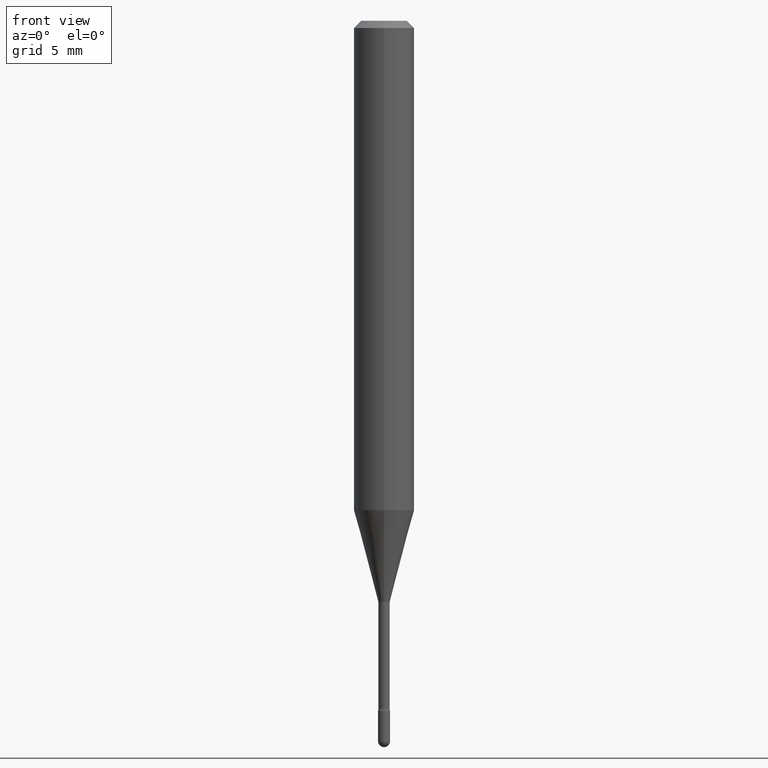
[diagram: clean part render]
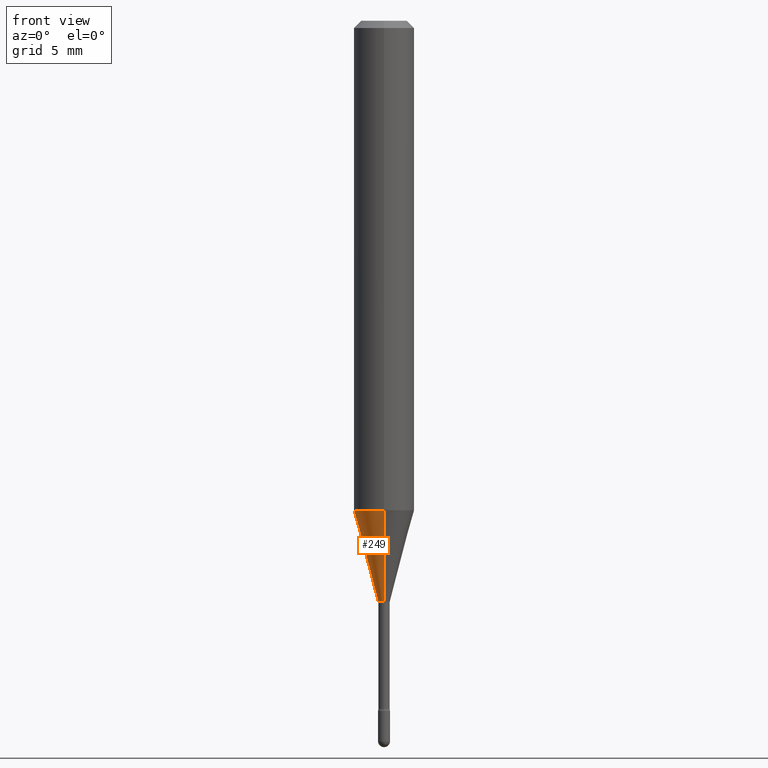
[diagram: same view with one face highlighted and labeled with its STEP entity id]
A machine part, front view. The second image highlights one B-rep face of the part: STEP entity #249.
In plain terms, the highlighted conical surface has half-angle 15 deg.
Its self-contained STEP definition (entity closure, byte-faithful):
#54 = CARTESIAN_POINT ( 'NONE',  ( 2.656048273965141059E-16, 0.01226111260565979771, -1.198092501787273223 ) ) ;
#58 = DIRECTION ( 'NONE',  ( -6.982962677686265922E-15, -1.000000000000000000, 0.000000000000000000 ) ) ;
#87 = EDGE_LOOP ( 'NONE', ( #92, #219, #452, #268 ) ) ;
#90 = VERTEX_POINT ( 'NONE', #372 ) ;
#92 = ORIENTED_EDGE ( 'NONE', *, *, #401, .F. ) ;
#97 = CARTESIAN_POINT ( 'NONE',  ( -4.364351673553670668E-16, -0.06250000000000353884, -1.010598421515879641 ) ) ;
#102 = VERTEX_POINT ( 'NONE', #204 ) ;
#121 = LINE ( 'NONE', #165, #295 ) ;
#127 = DIRECTION ( 'NONE',  ( -2.445561478799539239E-29, 3.491348626384723119E-15, 1.000000000000000000 ) ) ;
#131 = CONICAL_SURFACE ( 'NONE', #405, 0.01226111260566397840, 0.2617993877991499629 ) ;
#133 = FACE_OUTER_BOUND ( 'NONE', #87, .T. ) ;
#159 = EDGE_CURVE ( 'NONE', #310, #102, #449, .T. ) ;
#165 = CARTESIAN_POINT ( 'NONE',  ( -8.561889171223086706E-17, -0.01226111260566816255, -1.198092501787273223 ) ) ;
#179 = EDGE_CURVE ( 'NONE', #102, #312, #121, .T. ) ;
#187 = DIRECTION ( 'NONE',  ( -2.445561478799539239E-29, 3.491348626384723119E-15, 1.000000000000000000 ) ) ;
#204 = CARTESIAN_POINT ( 'NONE',  ( -8.561889171223086706E-17, -0.01226111260566816255, -1.198092501787273223 ) ) ;
#209 = DIRECTION ( 'NONE',  ( -6.982962677686265922E-15, -1.000000000000000000, 0.000000000000000000 ) ) ;
#216 = CARTESIAN_POINT ( 'NONE',  ( 2.930008870409523343E-29, -4.182958610396833212E-15, -1.198092501787273223 ) ) ;
#219 = ORIENTED_EDGE ( 'NONE', *, *, #159, .T. ) ;
#249 = ADVANCED_FACE ( 'NONE', ( #133 ), #131, .T. ) ;
#268 = ORIENTED_EDGE ( 'NONE', *, *, #400, .F. ) ;
#295 = VECTOR ( 'NONE', #433, 39.37007874015748143 ) ;
#308 = CIRCLE ( 'NONE', #322, 0.06250000000000000000 ) ;
#310 = VERTEX_POINT ( 'NONE', #54 ) ;
#312 = VERTEX_POINT ( 'NONE', #97 ) ;
#322 = AXIS2_PLACEMENT_3D ( 'NONE', #499, #187, #528 ) ;
#365 = LINE ( 'NONE', #457, #370 ) ;
#370 = VECTOR ( 'NONE', #531, 39.37007874015748854 ) ;
#372 = CARTESIAN_POINT ( 'NONE',  ( 4.440892098500871695E-16, 0.06249999999999647504, -1.010598421515880085 ) ) ;
#400 = EDGE_CURVE ( 'NONE', #90, #312, #308, .T. ) ;
#401 = EDGE_CURVE ( 'NONE', #310, #90, #365, .T. ) ;
#405 = AXIS2_PLACEMENT_3D ( 'NONE', #483, #127, #58 ) ;
#433 = DIRECTION ( 'NONE',  ( -1.807323732225328167E-15, -0.2588190451025179084, 0.9659258262890690894 ) ) ;
#449 = CIRCLE ( 'NONE', #539, 0.01226111260566397840 ) ;
#452 = ORIENTED_EDGE ( 'NONE', *, *, #179, .T. ) ;
#457 = CARTESIAN_POINT ( 'NONE',  ( 8.712044494294062318E-17, 0.01226111260565979598, -1.198092501787273223 ) ) ;
#483 = CARTESIAN_POINT ( 'NONE',  ( 2.930008870409523343E-29, -4.182958610396833212E-15, -1.198092501787273223 ) ) ;
#499 = CARTESIAN_POINT ( 'NONE',  ( 2.471480570194855478E-29, -3.528351410786036759E-15, -1.010598421515879863 ) ) ;
#516 = DIRECTION ( 'NONE',  ( -2.445561478799539239E-29, 3.491348626384723119E-15, 1.000000000000000000 ) ) ;
#528 = DIRECTION ( 'NONE',  ( -6.982962677686265922E-15, -1.000000000000000000, 4.370956789862821150E-15 ) ) ;
#531 = DIRECTION ( 'NONE',  ( 1.839019923739597949E-15, 0.2588190451025246253, 0.9659258262890670910 ) ) ;
#539 = AXIS2_PLACEMENT_3D ( 'NONE', #216, #516, #209 ) ;